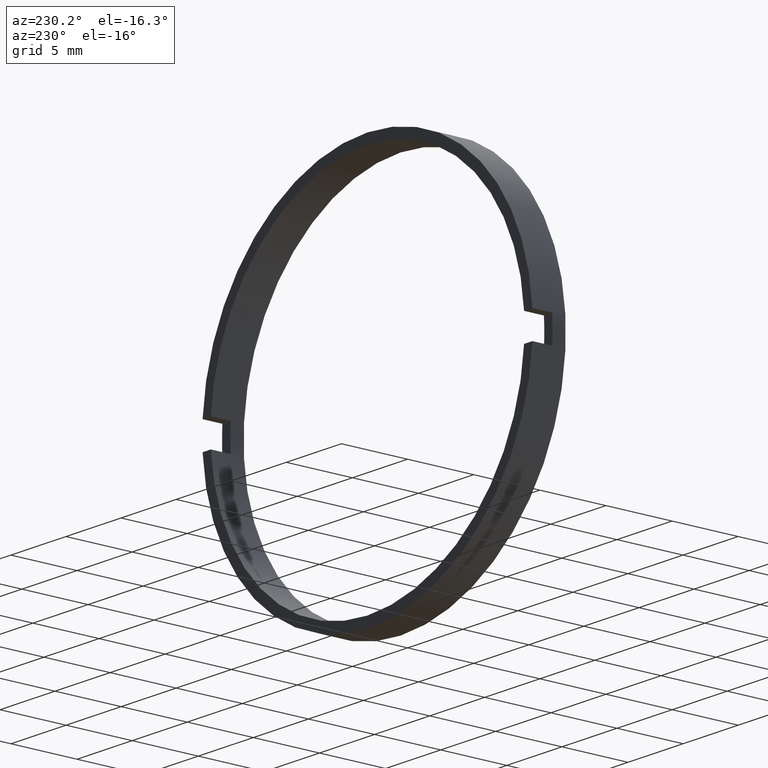
[diagram: clean part render]
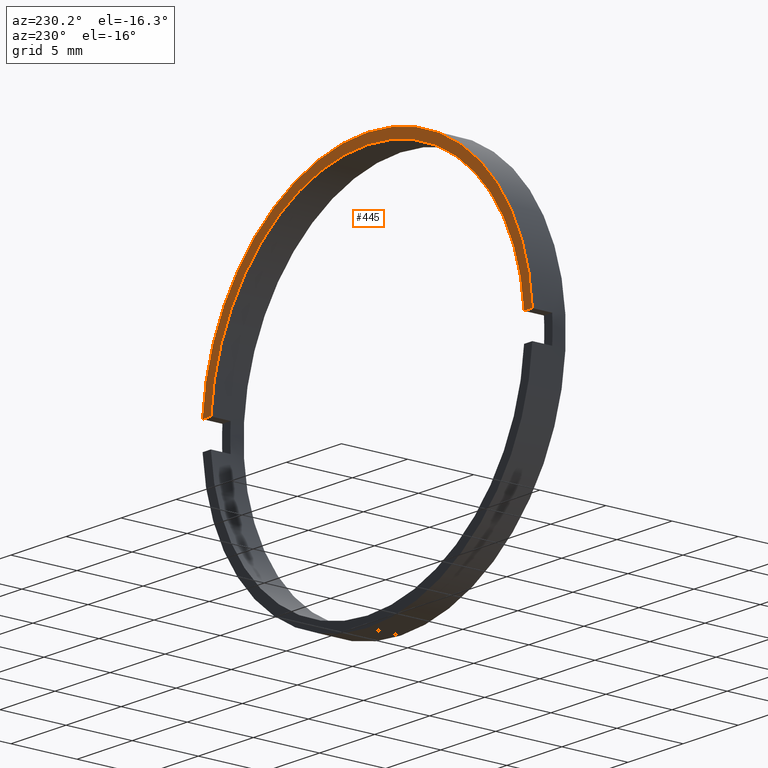
[diagram: same view with one face highlighted and labeled with its STEP entity id]
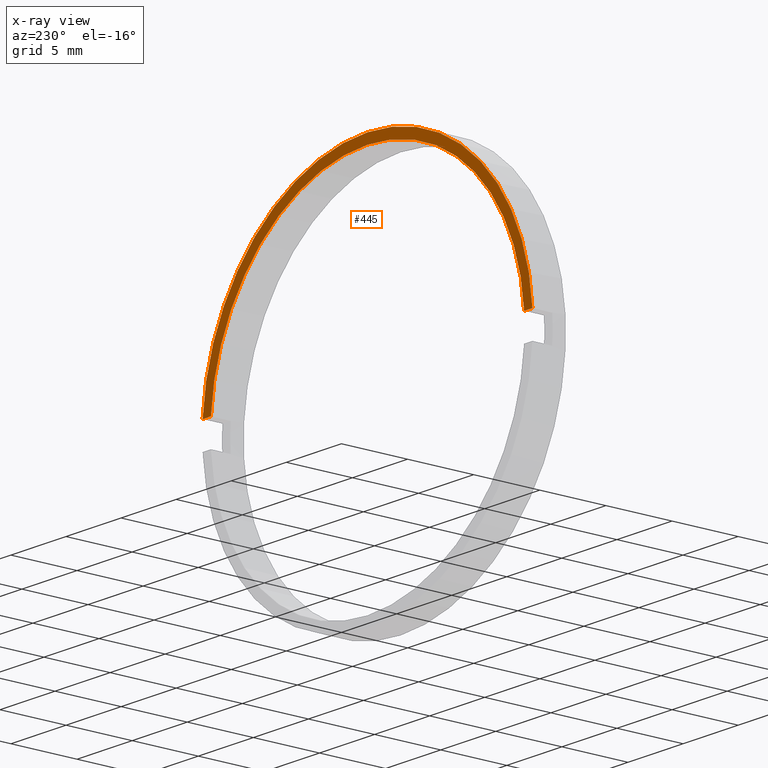
[diagram: x-ray of the same camera — body ghosted, the highlighted face saturated]
A machine part, auxiliary view. The second image highlights one B-rep face of the part: STEP entity #445.
The next image is the same camera in x-ray: the body ghosted, the highlighted face saturated — about 0% of this face is hidden behind the body in this view.
In plain terms, the highlighted planar face has unit normal (0, -1, 0).
Its self-contained STEP definition (entity closure, byte-faithful):
#7 = CARTESIAN_POINT ( 'NONE',  ( 0.0000000000000000000, -1.964249787179434000, 0.0000000000000000000 ) ) ;
#12 = DIRECTION ( 'NONE',  ( 0.0000000000000000000, 0.0000000000000000000, 1.000000000000000000 ) ) ;
#16 = EDGE_LOOP ( 'NONE', ( #266, #489, #267, #38, #197, #242 ) ) ;
#21 = FACE_OUTER_BOUND ( 'NONE', #16, .T. ) ;
#24 = CIRCLE ( 'NONE', #81, 14.25000000000000700 ) ;
#31 = EDGE_CURVE ( 'NONE', #291, #50, #198, .T. ) ;
#38 = ORIENTED_EDGE ( 'NONE', *, *, #77, .F. ) ;
#40 = VECTOR ( 'NONE', #442, 1000.000000000000000 ) ;
#43 = EDGE_CURVE ( 'NONE', #63, #203, #346, .T. ) ;
#50 = VERTEX_POINT ( 'NONE', #51 ) ;
#51 = CARTESIAN_POINT ( 'NONE',  ( 0.0000000000000000000, -1.964249787179434000, 14.25000000000000700 ) ) ;
#56 = EDGE_CURVE ( 'NONE', #365, #308, #433, .T. ) ;
#60 = DIRECTION ( 'NONE',  ( 0.0000000000000000000, -0.0000000000000000000, -1.000000000000000000 ) ) ;
#63 = VERTEX_POINT ( 'NONE', #169 ) ;
#69 = DIRECTION ( 'NONE',  ( 1.000000000000000000, 0.0000000000000000000, 0.0000000000000000000 ) ) ;
#77 = EDGE_CURVE ( 'NONE', #50, #63, #24, .T. ) ;
#81 = AXIS2_PLACEMENT_3D ( 'NONE', #7, #347, #12 ) ;
#91 = DIRECTION ( 'NONE',  ( -0.0000000000000000000, 1.000000000000000000, -0.0000000000000000000 ) ) ;
#117 = AXIS2_PLACEMENT_3D ( 'NONE', #283, #91, #441 ) ;
#126 = PLANE ( 'NONE',  #371 ) ;
#140 = CARTESIAN_POINT ( 'NONE',  ( 0.0000000000000000000, -1.964249787179434000, 15.00000000000000700 ) ) ;
#163 = DIRECTION ( 'NONE',  ( 0.0000000000000000000, 0.0000000000000000000, 1.000000000000000000 ) ) ;
#169 = CARTESIAN_POINT ( 'NONE',  ( 14.21486897582950300, -1.964249787179434000, 0.9999999999999995600 ) ) ;
#177 = DIRECTION ( 'NONE',  ( 0.0000000000000000000, -1.000000000000000000, 0.0000000000000000000 ) ) ;
#191 = DIRECTION ( 'NONE',  ( 0.0000000000000000000, 0.0000000000000000000, 1.000000000000000000 ) ) ;
#197 = ORIENTED_EDGE ( 'NONE', *, *, #31, .F. ) ;
#198 = CIRCLE ( 'NONE', #117, 14.25000000000000700 ) ;
#203 = VERTEX_POINT ( 'NONE', #332 ) ;
#242 = ORIENTED_EDGE ( 'NONE', *, *, #343, .F. ) ;
#248 = VECTOR ( 'NONE', #69, 1000.000000000000000 ) ;
#266 = ORIENTED_EDGE ( 'NONE', *, *, #56, .T. ) ;
#267 = ORIENTED_EDGE ( 'NONE', *, *, #43, .F. ) ;
#273 = CARTESIAN_POINT ( 'NONE',  ( 0.0000000000000000000, -1.964249787179434000, 0.0000000000000000000 ) ) ;
#283 = CARTESIAN_POINT ( 'NONE',  ( 0.0000000000000000000, -1.964249787179434000, 0.0000000000000000000 ) ) ;
#289 = CARTESIAN_POINT ( 'NONE',  ( -14.21486897582950300, -1.964249787179434000, 0.9999999999999995600 ) ) ;
#291 = VERTEX_POINT ( 'NONE', #289 ) ;
#297 = CARTESIAN_POINT ( 'NONE',  ( 0.0000000000000000000, -1.964249787179434000, 0.0000000000000000000 ) ) ;
#308 = VERTEX_POINT ( 'NONE', #140 ) ;
#332 = CARTESIAN_POINT ( 'NONE',  ( 14.96662954709576000, -1.964249787179430900, 1.000000000000000000 ) ) ;
#343 = EDGE_CURVE ( 'NONE', #365, #291, #478, .T. ) ;
#346 = LINE ( 'NONE', #477, #40 ) ;
#347 = DIRECTION ( 'NONE',  ( -0.0000000000000000000, 1.000000000000000000, -0.0000000000000000000 ) ) ;
#348 = EDGE_CURVE ( 'NONE', #308, #203, #374, .T. ) ;
#362 = AXIS2_PLACEMENT_3D ( 'NONE', #297, #497, #191 ) ;
#365 = VERTEX_POINT ( 'NONE', #499 ) ;
#371 = AXIS2_PLACEMENT_3D ( 'NONE', #480, #177, #60 ) ;
#374 = CIRCLE ( 'NONE', #362, 15.00000000000000700 ) ;
#377 = CARTESIAN_POINT ( 'NONE',  ( -26.85254027261461800, -1.964249787179430900, 1.000000000000000000 ) ) ;
#431 = DIRECTION ( 'NONE',  ( -0.0000000000000000000, 1.000000000000000000, -0.0000000000000000000 ) ) ;
#433 = CIRCLE ( 'NONE', #461, 15.00000000000000700 ) ;
#441 = DIRECTION ( 'NONE',  ( 0.0000000000000000000, 0.0000000000000000000, 1.000000000000000000 ) ) ;
#442 = DIRECTION ( 'NONE',  ( 1.000000000000000000, 0.0000000000000000000, 0.0000000000000000000 ) ) ;
#445 = ADVANCED_FACE ( 'NONE', ( #21 ), #126, .F. ) ;
#461 = AXIS2_PLACEMENT_3D ( 'NONE', #273, #431, #163 ) ;
#477 = CARTESIAN_POINT ( 'NONE',  ( -26.85254027261461800, -1.964249787179430900, 1.000000000000000000 ) ) ;
#478 = LINE ( 'NONE', #377, #248 ) ;
#480 = CARTESIAN_POINT ( 'NONE',  ( 14.25000000000000700, -1.964249787179430900, 0.0000000000000000000 ) ) ;
#489 = ORIENTED_EDGE ( 'NONE', *, *, #348, .T. ) ;
#497 = DIRECTION ( 'NONE',  ( -0.0000000000000000000, 1.000000000000000000, -0.0000000000000000000 ) ) ;
#499 = CARTESIAN_POINT ( 'NONE',  ( -14.96662954709577600, -1.964249787179430900, 1.000000000000000000 ) ) ;